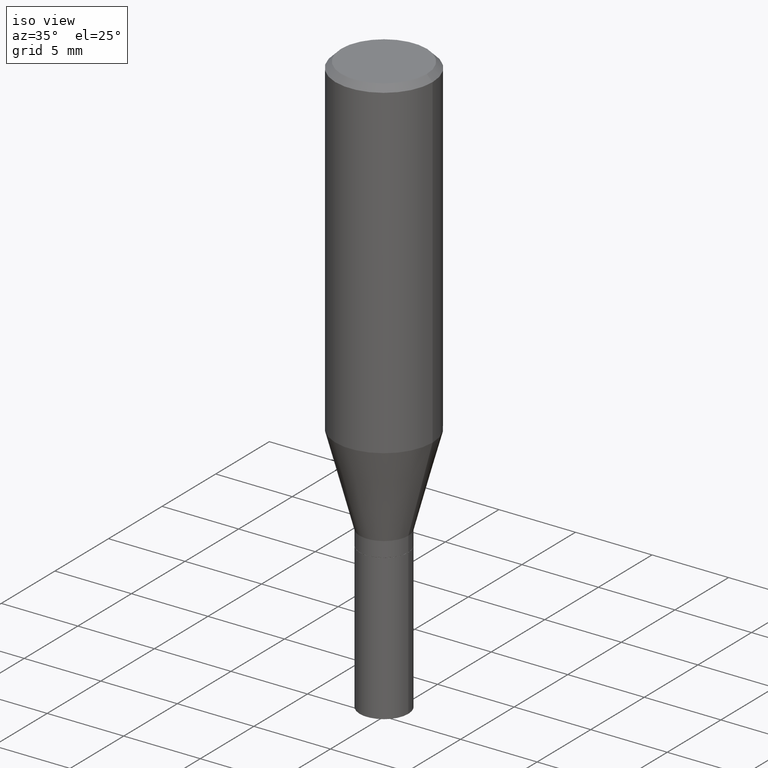
[diagram: clean part render]
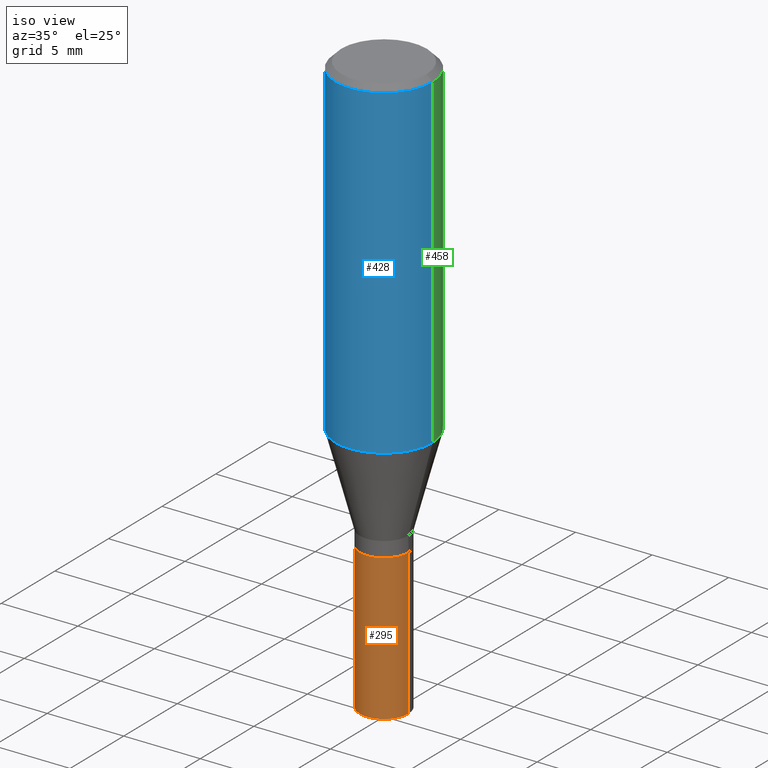
[diagram: same view with three faces highlighted in distinct colors, each labeled with its STEP entity id]
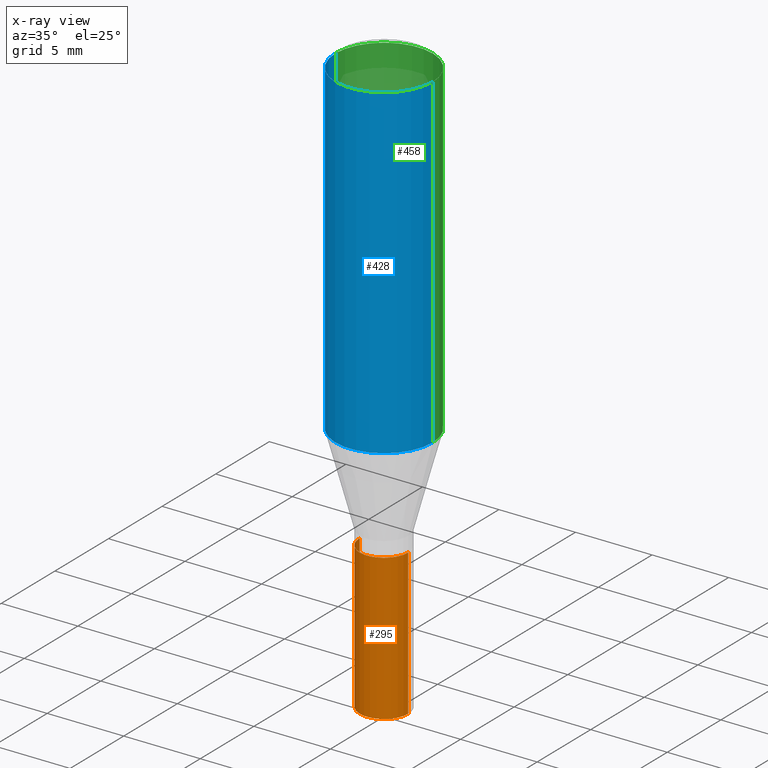
[diagram: x-ray of the same camera — body ghosted, the three highlighted faces saturated]
A machine part, iso view with three faces highlighted in distinct colors.
The next image is the same camera in x-ray (body ghosted, the three faces saturated) — at least one of them is partly hidden behind the body in this view.
Their STEP definitions:

[orange] entity #295 — the highlighted cylindrical surface (edge-blend (fillet) strip) has radius 1.5875 mm, axis along (-0, 0, 1).
#14 = DIRECTION ( 'NONE',  ( -2.445468806185136597E-29, 3.491481338843145583E-15, 1.000000000000000000 ) ) ;
#30 = CARTESIAN_POINT ( 'NONE',  ( 0.000000000000000000, 0.000000000000000000, 0.000000000000000000 ) ) ;
#50 = AXIS2_PLACEMENT_3D ( 'NONE', #330, #14, #84 ) ;
#64 = CARTESIAN_POINT ( 'NONE',  ( 0.06250000000000000000, -4.364351673553930894E-15, -1.125000000000000222 ) ) ;
#70 = EDGE_LOOP ( 'NONE', ( #402, #352, #209, #71 ) ) ;
#71 = ORIENTED_EDGE ( 'NONE', *, *, #245, .F. ) ;
#84 = DIRECTION ( 'NONE',  ( 1.000000000000000000, -6.982962677686262766E-15, 0.000000000000000000 ) ) ;
#104 = CARTESIAN_POINT ( 'NONE',  ( -0.06250000000000000000, -4.138480047381566479E-15, -1.125000000000000222 ) ) ;
#109 = VERTEX_POINT ( 'NONE', #104 ) ;
#110 = DIRECTION ( 'NONE',  ( -2.445468806185136877E-29, 3.491481338843145188E-15, 1.000000000000000000 ) ) ;
#119 = CARTESIAN_POINT ( 'NONE',  ( 0.06250000000000000000, -4.364351673553916694E-16, 3.047610484872459871E-30 ) ) ;
#125 = AXIS2_PLACEMENT_3D ( 'NONE', #138, #323, #289 ) ;
#131 = VECTOR ( 'NONE', #110, 39.37007874015748143 ) ;
#138 = CARTESIAN_POINT ( 'NONE',  ( 2.751152406958279232E-29, -3.927916506198539224E-15, -1.125000000000000222 ) ) ;
#156 = EDGE_CURVE ( 'NONE', #165, #214, #418, .T. ) ;
#165 = VERTEX_POINT ( 'NONE', #193 ) ;
#181 = CARTESIAN_POINT ( 'NONE',  ( -0.06250000000000000000, -4.138480047381566479E-15, -1.500000000000000222 ) ) ;
#190 = CYLINDRICAL_SURFACE ( 'NONE', #463, 0.06250000000000000000 ) ;
#193 = CARTESIAN_POINT ( 'NONE',  ( 0.06250000000000000000, -5.673657175620109846E-15, -1.500000000000000222 ) ) ;
#203 = CARTESIAN_POINT ( 'NONE',  ( -0.06250000000000000000, 4.440892098500626162E-16, -3.074334431409316114E-30 ) ) ;
#209 = ORIENTED_EDGE ( 'NONE', *, *, #156, .T. ) ;
#212 = DIRECTION ( 'NONE',  ( 1.000000000000000000, -6.982962677686266711E-15, 4.876176775795935793E-29 ) ) ;
#214 = VERTEX_POINT ( 'NONE', #64 ) ;
#245 = EDGE_CURVE ( 'NONE', #109, #214, #356, .T. ) ;
#271 = DIRECTION ( 'NONE',  ( -2.445468806185136877E-29, 3.491481338843145188E-15, 1.000000000000000000 ) ) ;
#278 = EDGE_CURVE ( 'NONE', #370, #165, #346, .T. ) ;
#289 = DIRECTION ( 'NONE',  ( 1.000000000000000000, -6.982962677686262766E-15, 0.000000000000000000 ) ) ;
#295 = ADVANCED_FACE ( 'NONE', ( #376 ), #190, .T. ) ;
#309 = DIRECTION ( 'NONE',  ( -2.445468806185136597E-29, 3.491481338843145583E-15, 1.000000000000000000 ) ) ;
#323 = DIRECTION ( 'NONE',  ( -2.445468806185136597E-29, 3.491481338843145583E-15, 1.000000000000000000 ) ) ;
#330 = CARTESIAN_POINT ( 'NONE',  ( 3.668203209277704895E-29, -5.237222008264718177E-15, -1.500000000000000222 ) ) ;
#334 = LINE ( 'NONE', #203, #131 ) ;
#346 = CIRCLE ( 'NONE', #50, 0.06250000000000000000 ) ;
#352 = ORIENTED_EDGE ( 'NONE', *, *, #278, .T. ) ;
#356 = CIRCLE ( 'NONE', #125, 0.06250000000000000000 ) ;
#370 = VERTEX_POINT ( 'NONE', #181 ) ;
#373 = EDGE_CURVE ( 'NONE', #370, #109, #334, .T. ) ;
#376 = FACE_OUTER_BOUND ( 'NONE', #70, .T. ) ;
#402 = ORIENTED_EDGE ( 'NONE', *, *, #373, .F. ) ;
#415 = VECTOR ( 'NONE', #271, 39.37007874015748143 ) ;
#418 = LINE ( 'NONE', #119, #415 ) ;
#463 = AXIS2_PLACEMENT_3D ( 'NONE', #30, #309, #212 ) ;

[blue] entity #428 — the highlighted cylindrical surface (partial cylindrical patch) has radius 3.175 mm, axis along (-0, 0, 1).
#2 = AXIS2_PLACEMENT_3D ( 'NONE', #340, #269, #224 ) ;
#31 = AXIS2_PLACEMENT_3D ( 'NONE', #148, #189, #221 ) ;
#55 = DIRECTION ( 'NONE',  ( -2.445468806185136877E-29, 3.491481338843145188E-15, 1.000000000000000000 ) ) ;
#67 = VERTEX_POINT ( 'NONE', #353 ) ;
#76 = ORIENTED_EDGE ( 'NONE', *, *, #286, .F. ) ;
#81 = CIRCLE ( 'NONE', #149, 0.1250000000000000000 ) ;
#90 = CARTESIAN_POINT ( 'NONE',  ( 0.1250000000000000000, -9.252425547934304180E-16, -0.01499999999999999944 ) ) ;
#91 = LINE ( 'NONE', #451, #282 ) ;
#132 = ORIENTED_EDGE ( 'NONE', *, *, #342, .T. ) ;
#142 = DIRECTION ( 'NONE',  ( 1.000000000000000000, -6.982962677686266711E-15, 0.000000000000000000 ) ) ;
#148 = CARTESIAN_POINT ( 'NONE',  ( 0.000000000000000000, 0.000000000000000000, 0.000000000000000000 ) ) ;
#149 = AXIS2_PLACEMENT_3D ( 'NONE', #299, #208, #142 ) ;
#158 = ORIENTED_EDGE ( 'NONE', *, *, #257, .F. ) ;
#160 = VERTEX_POINT ( 'NONE', #421 ) ;
#189 = DIRECTION ( 'NONE',  ( -2.445468806185136597E-29, 3.491481338843145583E-15, 1.000000000000000000 ) ) ;
#208 = DIRECTION ( 'NONE',  ( -2.445468806185136597E-29, 3.491481338843145583E-15, 1.000000000000000000 ) ) ;
#221 = DIRECTION ( 'NONE',  ( 1.000000000000000000, -6.982962677686266711E-15, 4.876176775795935793E-29 ) ) ;
#224 = DIRECTION ( 'NONE',  ( 1.000000000000000000, -6.982962677686266711E-15, 0.000000000000000000 ) ) ;
#253 = FACE_OUTER_BOUND ( 'NONE', #457, .T. ) ;
#255 = VERTEX_POINT ( 'NONE', #90 ) ;
#257 = EDGE_CURVE ( 'NONE', #67, #160, #91, .T. ) ;
#269 = DIRECTION ( 'NONE',  ( -2.445468806185136597E-29, 3.491481338843145583E-15, 1.000000000000000000 ) ) ;
#282 = VECTOR ( 'NONE', #379, 39.37007874015748143 ) ;
#286 = EDGE_CURVE ( 'NONE', #160, #255, #420, .T. ) ;
#299 = CARTESIAN_POINT ( 'NONE',  ( 2.085365758954078334E-29, -2.977349624593584208E-15, -0.8527468245269465008 ) ) ;
#340 = CARTESIAN_POINT ( 'NONE',  ( 3.668203209277705088E-31, -5.237222008264718399E-17, -0.01499999999999999944 ) ) ;
#342 = EDGE_CURVE ( 'NONE', #67, #391, #81, .T. ) ;
#353 = CARTESIAN_POINT ( 'NONE',  ( -0.1250000000000000000, -2.089171204893458581E-15, -0.8527468245269465008 ) ) ;
#379 = DIRECTION ( 'NONE',  ( -2.445468806185136877E-29, 3.491481338843145188E-15, 1.000000000000000000 ) ) ;
#382 = CARTESIAN_POINT ( 'NONE',  ( 0.1250000000000000000, -8.728703347107833388E-16, 6.095220969744919741E-30 ) ) ;
#391 = VERTEX_POINT ( 'NONE', #413 ) ;
#409 = CYLINDRICAL_SURFACE ( 'NONE', #31, 0.1250000000000000000 ) ;
#410 = ORIENTED_EDGE ( 'NONE', *, *, #446, .T. ) ;
#413 = CARTESIAN_POINT ( 'NONE',  ( 0.1250000000000000000, -3.850219959304367152E-15, -0.8527468245269465008 ) ) ;
#420 = CIRCLE ( 'NONE', #2, 0.1250000000000000000 ) ;
#421 = CARTESIAN_POINT ( 'NONE',  ( -0.1250000000000000000, -6.266825026379905098E-16, -0.01499999999999999944 ) ) ;
#422 = LINE ( 'NONE', #382, #454 ) ;
#428 = ADVANCED_FACE ( 'NONE', ( #253 ), #409, .T. ) ;
#446 = EDGE_CURVE ( 'NONE', #391, #255, #422, .T. ) ;
#451 = CARTESIAN_POINT ( 'NONE',  ( -0.1250000000000000000, 8.881784197001252323E-16, -6.148668862818632227E-30 ) ) ;
#454 = VECTOR ( 'NONE', #55, 39.37007874015748143 ) ;
#457 = EDGE_LOOP ( 'NONE', ( #158, #132, #410, #76 ) ) ;

[green] entity #458 — the highlighted cylindrical surface (partial cylindrical patch) has radius 3.175 mm, axis along (-0, 0, 1).
#20 = AXIS2_PLACEMENT_3D ( 'NONE', #251, #407, #412 ) ;
#21 = FACE_OUTER_BOUND ( 'NONE', #40, .T. ) ;
#40 = EDGE_LOOP ( 'NONE', ( #95, #122, #291, #349 ) ) ;
#48 = DIRECTION ( 'NONE',  ( 1.000000000000000000, -6.982962677686266711E-15, 0.000000000000000000 ) ) ;
#55 = DIRECTION ( 'NONE',  ( -2.445468806185136877E-29, 3.491481338843145188E-15, 1.000000000000000000 ) ) ;
#67 = VERTEX_POINT ( 'NONE', #353 ) ;
#83 = DIRECTION ( 'NONE',  ( 1.000000000000000000, -6.982962677686266711E-15, 4.876176775795935793E-29 ) ) ;
#90 = CARTESIAN_POINT ( 'NONE',  ( 0.1250000000000000000, -9.252425547934304180E-16, -0.01499999999999999944 ) ) ;
#91 = LINE ( 'NONE', #451, #282 ) ;
#95 = ORIENTED_EDGE ( 'NONE', *, *, #169, .T. ) ;
#112 = CARTESIAN_POINT ( 'NONE',  ( 0.000000000000000000, 0.000000000000000000, 0.000000000000000000 ) ) ;
#117 = EDGE_CURVE ( 'NONE', #255, #160, #217, .T. ) ;
#122 = ORIENTED_EDGE ( 'NONE', *, *, #257, .T. ) ;
#150 = CYLINDRICAL_SURFACE ( 'NONE', #347, 0.1250000000000000000 ) ;
#160 = VERTEX_POINT ( 'NONE', #421 ) ;
#169 = EDGE_CURVE ( 'NONE', #391, #67, #423, .T. ) ;
#217 = CIRCLE ( 'NONE', #20, 0.1250000000000000000 ) ;
#220 = CARTESIAN_POINT ( 'NONE',  ( 2.085365758954078334E-29, -2.977349624593584208E-15, -0.8527468245269465008 ) ) ;
#251 = CARTESIAN_POINT ( 'NONE',  ( 3.668203209277705088E-31, -5.237222008264718399E-17, -0.01499999999999999944 ) ) ;
#255 = VERTEX_POINT ( 'NONE', #90 ) ;
#257 = EDGE_CURVE ( 'NONE', #67, #160, #91, .T. ) ;
#275 = AXIS2_PLACEMENT_3D ( 'NONE', #220, #343, #48 ) ;
#282 = VECTOR ( 'NONE', #379, 39.37007874015748143 ) ;
#291 = ORIENTED_EDGE ( 'NONE', *, *, #117, .F. ) ;
#343 = DIRECTION ( 'NONE',  ( -2.445468806185136597E-29, 3.491481338843145583E-15, 1.000000000000000000 ) ) ;
#347 = AXIS2_PLACEMENT_3D ( 'NONE', #112, #372, #83 ) ;
#349 = ORIENTED_EDGE ( 'NONE', *, *, #446, .F. ) ;
#353 = CARTESIAN_POINT ( 'NONE',  ( -0.1250000000000000000, -2.089171204893458581E-15, -0.8527468245269465008 ) ) ;
#372 = DIRECTION ( 'NONE',  ( -2.445468806185136597E-29, 3.491481338843145583E-15, 1.000000000000000000 ) ) ;
#379 = DIRECTION ( 'NONE',  ( -2.445468806185136877E-29, 3.491481338843145188E-15, 1.000000000000000000 ) ) ;
#382 = CARTESIAN_POINT ( 'NONE',  ( 0.1250000000000000000, -8.728703347107833388E-16, 6.095220969744919741E-30 ) ) ;
#391 = VERTEX_POINT ( 'NONE', #413 ) ;
#407 = DIRECTION ( 'NONE',  ( -2.445468806185136597E-29, 3.491481338843145583E-15, 1.000000000000000000 ) ) ;
#412 = DIRECTION ( 'NONE',  ( 1.000000000000000000, -6.982962677686266711E-15, 0.000000000000000000 ) ) ;
#413 = CARTESIAN_POINT ( 'NONE',  ( 0.1250000000000000000, -3.850219959304367152E-15, -0.8527468245269465008 ) ) ;
#421 = CARTESIAN_POINT ( 'NONE',  ( -0.1250000000000000000, -6.266825026379905098E-16, -0.01499999999999999944 ) ) ;
#422 = LINE ( 'NONE', #382, #454 ) ;
#423 = CIRCLE ( 'NONE', #275, 0.1250000000000000000 ) ;
#446 = EDGE_CURVE ( 'NONE', #391, #255, #422, .T. ) ;
#451 = CARTESIAN_POINT ( 'NONE',  ( -0.1250000000000000000, 8.881784197001252323E-16, -6.148668862818632227E-30 ) ) ;
#454 = VECTOR ( 'NONE', #55, 39.37007874015748143 ) ;
#458 = ADVANCED_FACE ( 'NONE', ( #21 ), #150, .T. ) ;